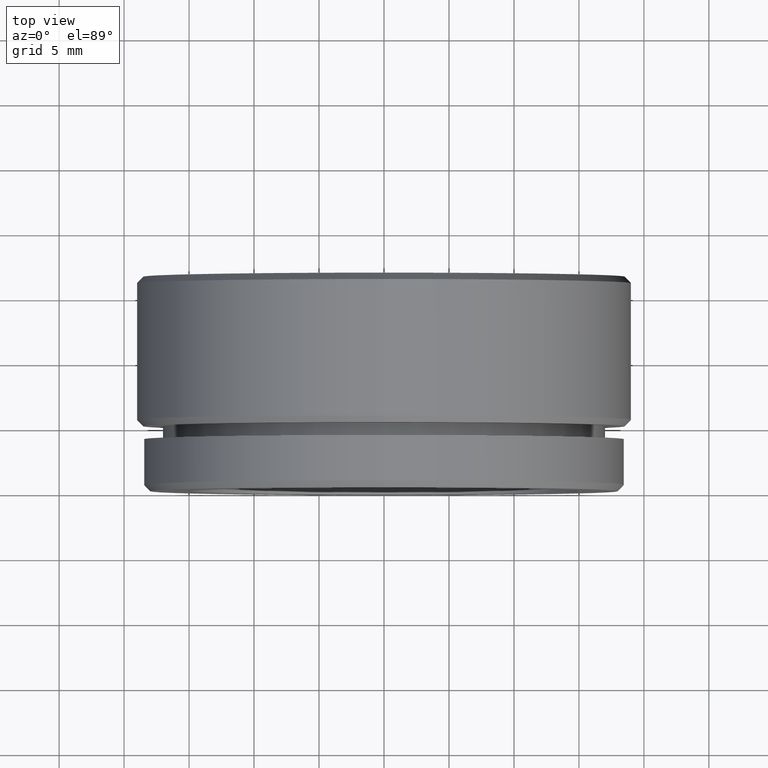
[diagram: clean part render]
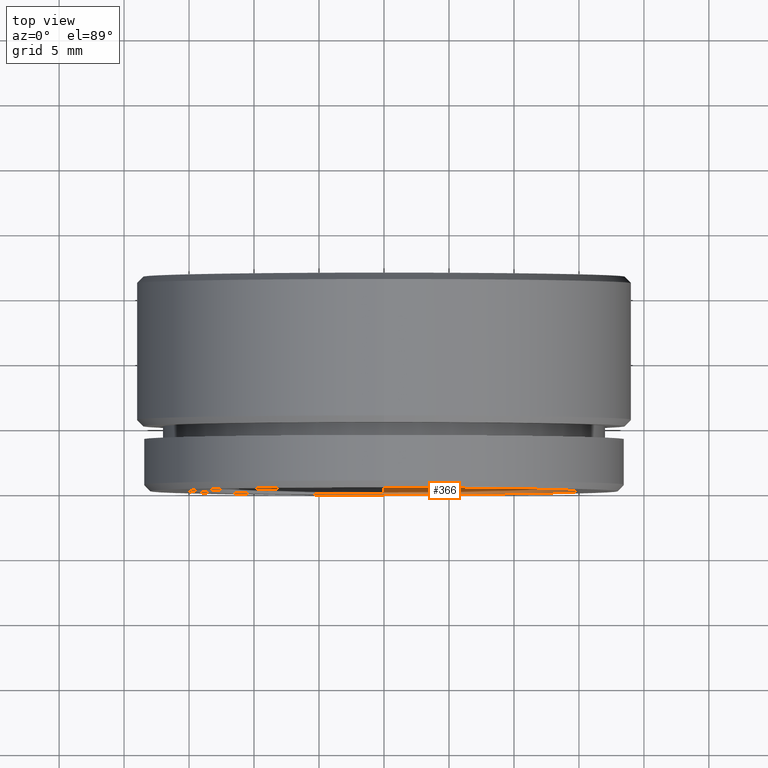
[diagram: same view with one face highlighted and labeled with its STEP entity id]
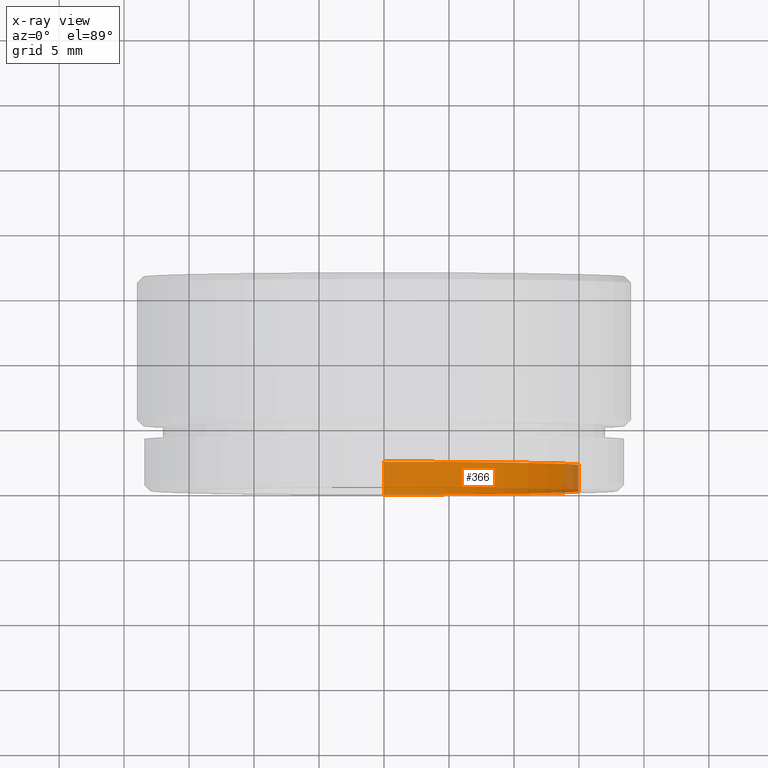
[diagram: x-ray of the same camera — body ghosted, the highlighted face saturated]
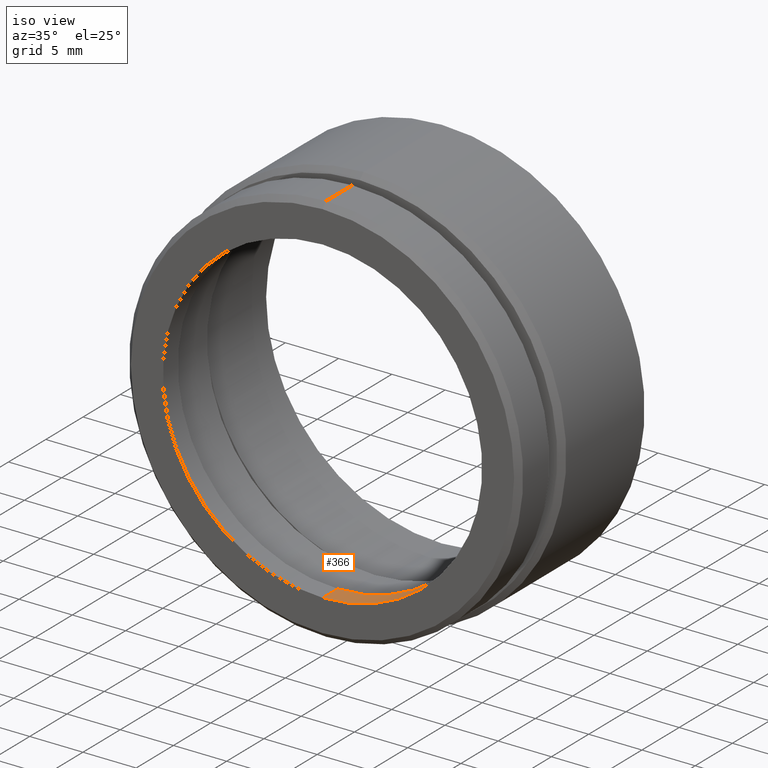
[diagram: same view with one face highlighted and labeled with its STEP entity id]
A machine part, top view. The second image highlights one B-rep face of the part: STEP entity #366.
The next image is the same camera in x-ray: the body ghosted, the highlighted face saturated — about 6% of this face is hidden behind the body in this view.
A second angle (iso view) of the same face is appended — the face is thin or edge-on in the first view.
In plain terms, the highlighted cylindrical surface (partial cylindrical patch) has radius 15 mm, axis along (-0, -1, -0).
Its self-contained STEP definition (entity closure, byte-faithful):
#35 = CARTESIAN_POINT ( 'NONE',  ( 1.836970198721029600E-015, 0.0000000000000000000, 15.00000000000000000 ) ) ;
#37 = CARTESIAN_POINT ( 'NONE',  ( 0.0000000000000000000, 2.000000000000000000, 0.0000000000000000000 ) ) ;
#45 = DIRECTION ( 'NONE',  ( -0.0000000000000000000, -1.000000000000000000, -0.0000000000000000000 ) ) ;
#72 = CARTESIAN_POINT ( 'NONE',  ( 1.836970198721029600E-015, 0.0000000000000000000, 15.00000000000000000 ) ) ;
#113 = DIRECTION ( 'NONE',  ( 0.0000000000000000000, 0.0000000000000000000, -1.000000000000000000 ) ) ;
#118 = CARTESIAN_POINT ( 'NONE',  ( 0.0000000000000000000, 0.0000000000000000000, -15.00000000000000000 ) ) ;
#137 = DIRECTION ( 'NONE',  ( -0.0000000000000000000, -1.000000000000000000, -0.0000000000000000000 ) ) ;
#161 = CARTESIAN_POINT ( 'NONE',  ( 0.0000000000000000000, 0.0000000000000000000, 0.0000000000000000000 ) ) ;
#170 = AXIS2_PLACEMENT_3D ( 'NONE', #37, #45, #113 ) ;
#174 = VECTOR ( 'NONE', #410, 1000.000000000000000 ) ;
#194 = ORIENTED_EDGE ( 'NONE', *, *, #746, .T. ) ;
#195 = CIRCLE ( 'NONE', #170, 15.00000000000000000 ) ;
#209 = EDGE_LOOP ( 'NONE', ( #432, #433, #754, #194 ) ) ;
#248 = VERTEX_POINT ( 'NONE', #431 ) ;
#259 = DIRECTION ( 'NONE',  ( -0.0000000000000000000, -1.000000000000000000, -0.0000000000000000000 ) ) ;
#260 = DIRECTION ( 'NONE',  ( 0.0000000000000000000, 0.0000000000000000000, -1.000000000000000000 ) ) ;
#269 = AXIS2_PLACEMENT_3D ( 'NONE', #161, #259, #260 ) ;
#312 = CIRCLE ( 'NONE', #269, 15.00000000000000000 ) ;
#345 = LINE ( 'NONE', #72, #174 ) ;
#347 = VECTOR ( 'NONE', #137, 1000.000000000000000 ) ;
#365 = VERTEX_POINT ( 'NONE', #809 ) ;
#366 = ADVANCED_FACE ( 'NONE', ( #860 ), #690, .F. ) ;
#410 = DIRECTION ( 'NONE',  ( -0.0000000000000000000, -1.000000000000000000, -0.0000000000000000000 ) ) ;
#431 = CARTESIAN_POINT ( 'NONE',  ( 0.0000000000000000000, 2.000000000000000000, -15.00000000000000000 ) ) ;
#432 = ORIENTED_EDGE ( 'NONE', *, *, #685, .F. ) ;
#433 = ORIENTED_EDGE ( 'NONE', *, *, #680, .F. ) ;
#605 = VERTEX_POINT ( 'NONE', #632 ) ;
#632 = CARTESIAN_POINT ( 'NONE',  ( 1.836970198721029600E-015, 2.000000000000000000, 15.00000000000000000 ) ) ;
#657 = AXIS2_PLACEMENT_3D ( 'NONE', #797, #781, #803 ) ;
#680 = EDGE_CURVE ( 'NONE', #248, #605, #195, .T. ) ;
#685 = EDGE_CURVE ( 'NONE', #605, #718, #345, .T. ) ;
#690 = CYLINDRICAL_SURFACE ( 'NONE', #657, 15.00000000000000000 ) ;
#697 = EDGE_CURVE ( 'NONE', #248, #365, #735, .T. ) ;
#718 = VERTEX_POINT ( 'NONE', #35 ) ;
#735 = LINE ( 'NONE', #118, #347 ) ;
#746 = EDGE_CURVE ( 'NONE', #365, #718, #312, .T. ) ;
#754 = ORIENTED_EDGE ( 'NONE', *, *, #697, .T. ) ;
#781 = DIRECTION ( 'NONE',  ( -0.0000000000000000000, -1.000000000000000000, -0.0000000000000000000 ) ) ;
#797 = CARTESIAN_POINT ( 'NONE',  ( 0.0000000000000000000, 0.0000000000000000000, 0.0000000000000000000 ) ) ;
#803 = DIRECTION ( 'NONE',  ( 0.0000000000000000000, 0.0000000000000000000, -1.000000000000000000 ) ) ;
#809 = CARTESIAN_POINT ( 'NONE',  ( 0.0000000000000000000, 0.0000000000000000000, -15.00000000000000000 ) ) ;
#860 = FACE_OUTER_BOUND ( 'NONE', #209, .T. ) ;